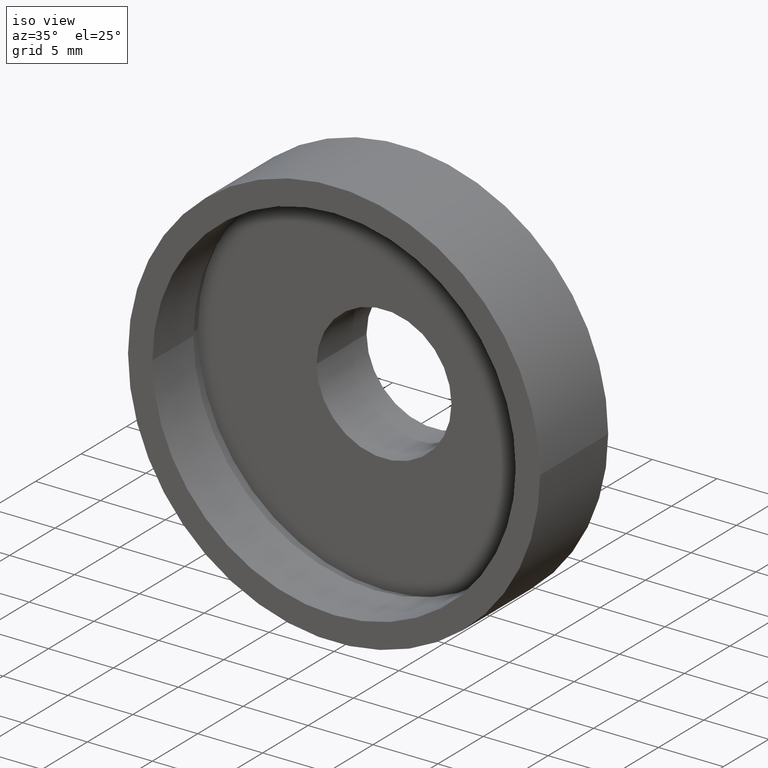
[diagram: clean part render]
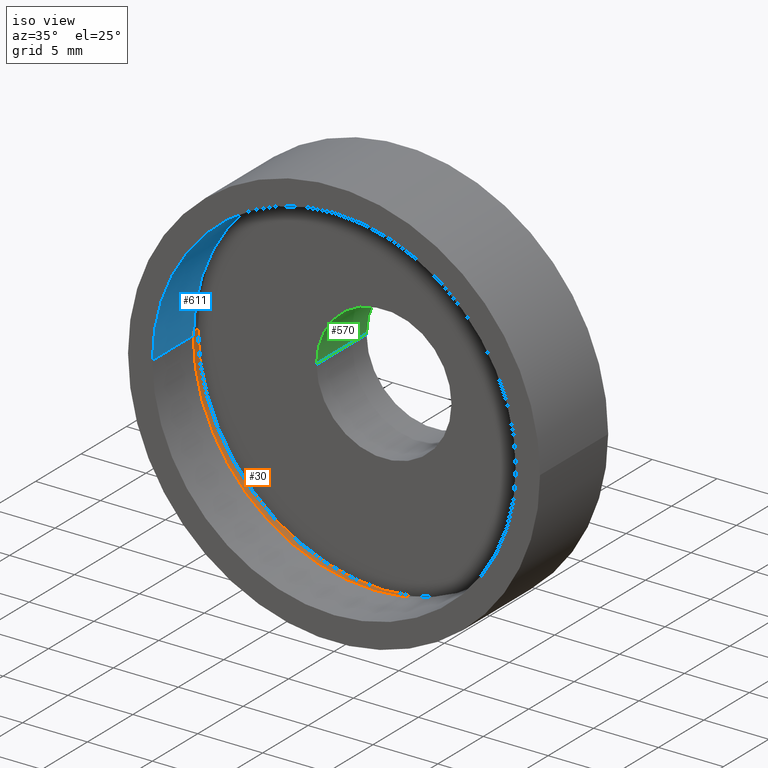
[diagram: same view with three faces highlighted in distinct colors, each labeled with its STEP entity id]
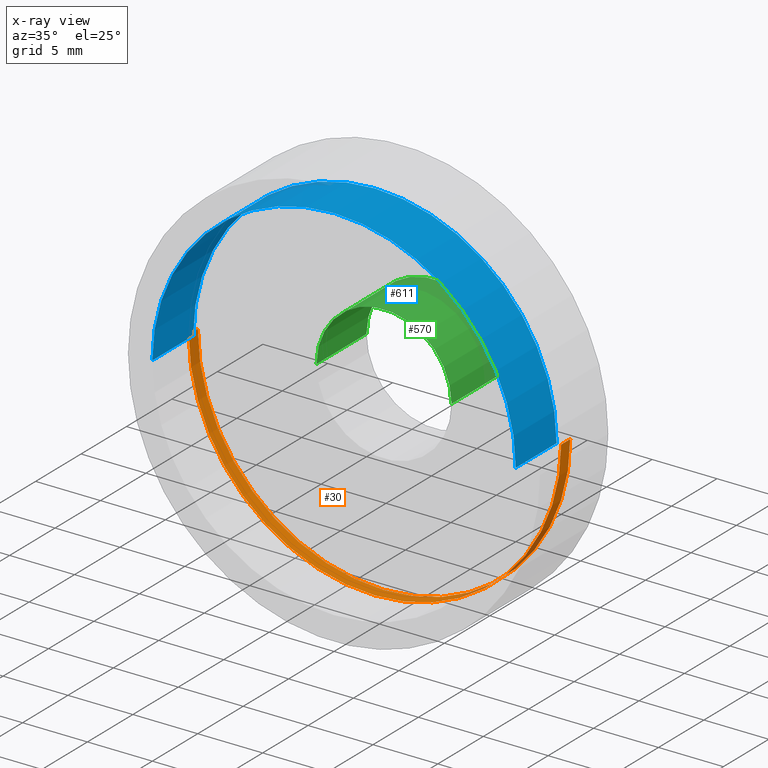
[diagram: x-ray of the same camera — body ghosted, the three highlighted faces saturated]
A machine part, iso view with three faces highlighted in distinct colors.
The next image is the same camera in x-ray (body ghosted, the three faces saturated) — at least one of them is partly hidden behind the body in this view.
Their STEP definitions:

[orange] entity #30 — the highlighted cylindrical surface (partial cylindrical patch) has radius 14.35 mm, axis along (-0, 1, -0).
#12 = CARTESIAN_POINT ( 'NONE',  ( 14.35000000000000100, 5.500000000000000000, 1.757368156776452000E-015 ) ) ;
#30 = ADVANCED_FACE ( 'NONE', ( #301 ), #120, .F. ) ;
#41 = DIRECTION ( 'NONE',  ( -1.000000000000000000, -1.208866533781747200E-016, 0.0000000000000000000 ) ) ;
#47 = CARTESIAN_POINT ( 'NONE',  ( 0.0000000000000000000, 16.88601823708207700, 0.0000000000000000000 ) ) ;
#55 = CARTESIAN_POINT ( 'NONE',  ( -14.34999999999999800, 5.499999999999996400, 0.0000000000000000000 ) ) ;
#70 = CIRCLE ( 'NONE', #162, 14.35000000000000000 ) ;
#97 = ORIENTED_EDGE ( 'NONE', *, *, #172, .F. ) ;
#120 = CYLINDRICAL_SURFACE ( 'NONE', #572, 14.35000000000000000 ) ;
#122 = VERTEX_POINT ( 'NONE', #55 ) ;
#129 = VERTEX_POINT ( 'NONE', #12 ) ;
#139 = DIRECTION ( 'NONE',  ( -1.224646799147351000E-016, 1.000000000000000000, -0.0000000000000000000 ) ) ;
#150 = ORIENTED_EDGE ( 'NONE', *, *, #602, .T. ) ;
#162 = AXIS2_PLACEMENT_3D ( 'NONE', #388, #196, #41 ) ;
#172 = EDGE_CURVE ( 'NONE', #263, #250, #393, .T. ) ;
#184 = DIRECTION ( 'NONE',  ( -1.000000000000000000, -2.417733067563494300E-016, 0.0000000000000000000 ) ) ;
#196 = DIRECTION ( 'NONE',  ( -1.224646799147351000E-016, 1.000000000000000000, -0.0000000000000000000 ) ) ;
#216 = LINE ( 'NONE', #469, #331 ) ;
#220 = ORIENTED_EDGE ( 'NONE', *, *, #432, .T. ) ;
#250 = VERTEX_POINT ( 'NONE', #359 ) ;
#263 = VERTEX_POINT ( 'NONE', #374 ) ;
#266 = DIRECTION ( 'NONE',  ( -1.000000000000000000, -1.208866533781747200E-016, 0.0000000000000000000 ) ) ;
#301 = FACE_OUTER_BOUND ( 'NONE', #566, .T. ) ;
#331 = VECTOR ( 'NONE', #567, 1000.000000000000000 ) ;
#359 = CARTESIAN_POINT ( 'NONE',  ( -14.34999999999999800, 4.499999999999997300, 0.0000000000000000000 ) ) ;
#374 = CARTESIAN_POINT ( 'NONE',  ( 14.35000000000000100, 4.500000000000000900, 1.757368156776452000E-015 ) ) ;
#385 = VECTOR ( 'NONE', #394, 1000.000000000000000 ) ;
#388 = CARTESIAN_POINT ( 'NONE',  ( 1.394385078907593000E-015, 5.499999999999998200, 0.0000000000000000000 ) ) ;
#389 = AXIS2_PLACEMENT_3D ( 'NONE', #456, #500, #266 ) ;
#393 = CIRCLE ( 'NONE', #389, 14.35000000000000000 ) ;
#394 = DIRECTION ( 'NONE',  ( -1.224646799147351000E-016, 1.000000000000000000, -0.0000000000000000000 ) ) ;
#432 = EDGE_CURVE ( 'NONE', #263, #129, #216, .T. ) ;
#438 = LINE ( 'NONE', #540, #385 ) ;
#456 = CARTESIAN_POINT ( 'NONE',  ( 1.516849758822328100E-015, 4.499999999999999100, 0.0000000000000000000 ) ) ;
#469 = CARTESIAN_POINT ( 'NONE',  ( 14.35000000000000000, 16.88601823708208000, 1.757368156776452000E-015 ) ) ;
#500 = DIRECTION ( 'NONE',  ( -1.224646799147351000E-016, 1.000000000000000000, -0.0000000000000000000 ) ) ;
#529 = ORIENTED_EDGE ( 'NONE', *, *, #545, .F. ) ;
#540 = CARTESIAN_POINT ( 'NONE',  ( -14.35000000000000000, 16.88601823708207300, 0.0000000000000000000 ) ) ;
#545 = EDGE_CURVE ( 'NONE', #250, #122, #438, .T. ) ;
#566 = EDGE_LOOP ( 'NONE', ( #97, #220, #150, #529 ) ) ;
#567 = DIRECTION ( 'NONE',  ( -1.224646799147351000E-016, 1.000000000000000000, -0.0000000000000000000 ) ) ;
#572 = AXIS2_PLACEMENT_3D ( 'NONE', #47, #139, #184 ) ;
#602 = EDGE_CURVE ( 'NONE', #129, #122, #70, .T. ) ;

[blue] entity #611 — the highlighted cylindrical surface (partial cylindrical patch) has radius 14 mm, axis along (-0, 1, -0).
#56 = VERTEX_POINT ( 'NONE', #145 ) ;
#71 = CIRCLE ( 'NONE', #225, 14.00000000000000000 ) ;
#74 = CARTESIAN_POINT ( 'NONE',  ( -13.99999999999999800, 4.499999999999997300, 0.0000000000000000000 ) ) ;
#101 = CARTESIAN_POINT ( 'NONE',  ( 14.00000000000000200, 1.714505518806291500E-015, 1.714505518806294600E-015 ) ) ;
#107 = EDGE_CURVE ( 'NONE', #440, #591, #270, .T. ) ;
#145 = CARTESIAN_POINT ( 'NONE',  ( -13.99999999999999800, -1.714505518806291500E-015, 0.0000000000000000000 ) ) ;
#159 = DIRECTION ( 'NONE',  ( -1.000000000000000000, -1.239088197126290800E-016, 0.0000000000000000000 ) ) ;
#164 = VERTEX_POINT ( 'NONE', #101 ) ;
#173 = LINE ( 'NONE', #605, #246 ) ;
#225 = AXIS2_PLACEMENT_3D ( 'NONE', #519, #384, #377 ) ;
#236 = DIRECTION ( 'NONE',  ( -1.224646799147351000E-016, 1.000000000000000000, -0.0000000000000000000 ) ) ;
#240 = EDGE_LOOP ( 'NONE', ( #496, #468, #382, #585 ) ) ;
#246 = VECTOR ( 'NONE', #425, 1000.000000000000000 ) ;
#248 = DIRECTION ( 'NONE',  ( -1.224646799147351000E-016, 1.000000000000000000, -0.0000000000000000000 ) ) ;
#261 = VECTOR ( 'NONE', #236, 1000.000000000000000 ) ;
#267 = AXIS2_PLACEMENT_3D ( 'NONE', #396, #491, #159 ) ;
#268 = FACE_OUTER_BOUND ( 'NONE', #240, .T. ) ;
#270 = CIRCLE ( 'NONE', #267, 14.00000000000000000 ) ;
#338 = CARTESIAN_POINT ( 'NONE',  ( 14.00000000000000200, 4.500000000000000900, 1.714505518806294600E-015 ) ) ;
#340 = AXIS2_PLACEMENT_3D ( 'NONE', #531, #248, #390 ) ;
#364 = CYLINDRICAL_SURFACE ( 'NONE', #340, 14.00000000000000000 ) ;
#377 = DIRECTION ( 'NONE',  ( -1.000000000000000000, -1.224646799147351000E-016, 0.0000000000000000000 ) ) ;
#382 = ORIENTED_EDGE ( 'NONE', *, *, #514, .T. ) ;
#384 = DIRECTION ( 'NONE',  ( -1.224646799147351000E-016, 1.000000000000000000, -0.0000000000000000000 ) ) ;
#390 = DIRECTION ( 'NONE',  ( -1.000000000000000000, 0.0000000000000000000, 0.0000000000000000000 ) ) ;
#396 = CARTESIAN_POINT ( 'NONE',  ( 1.516849758822328100E-015, 4.499999999999999100, 0.0000000000000000000 ) ) ;
#400 = EDGE_CURVE ( 'NONE', #164, #591, #173, .T. ) ;
#425 = DIRECTION ( 'NONE',  ( -1.224646799147351000E-016, 1.000000000000000000, -0.0000000000000000000 ) ) ;
#431 = LINE ( 'NONE', #528, #261 ) ;
#440 = VERTEX_POINT ( 'NONE', #74 ) ;
#450 = EDGE_CURVE ( 'NONE', #56, #164, #71, .T. ) ;
#468 = ORIENTED_EDGE ( 'NONE', *, *, #450, .F. ) ;
#491 = DIRECTION ( 'NONE',  ( -1.224646799147351000E-016, 1.000000000000000000, -0.0000000000000000000 ) ) ;
#496 = ORIENTED_EDGE ( 'NONE', *, *, #400, .F. ) ;
#514 = EDGE_CURVE ( 'NONE', #56, #440, #431, .T. ) ;
#519 = CARTESIAN_POINT ( 'NONE',  ( 2.067940818438636100E-015, 0.0000000000000000000, 0.0000000000000000000 ) ) ;
#528 = CARTESIAN_POINT ( 'NONE',  ( -14.00000000000000000, 16.88601823708207700, 0.0000000000000000000 ) ) ;
#531 = CARTESIAN_POINT ( 'NONE',  ( 0.0000000000000000000, 16.88601823708207700, 0.0000000000000000000 ) ) ;
#585 = ORIENTED_EDGE ( 'NONE', *, *, #107, .T. ) ;
#591 = VERTEX_POINT ( 'NONE', #338 ) ;
#605 = CARTESIAN_POINT ( 'NONE',  ( 14.00000000000000000, 16.88601823708207700, 1.714505518806294600E-015 ) ) ;
#611 = ADVANCED_FACE ( 'NONE', ( #268 ), #364, .F. ) ;

[green] entity #570 — the highlighted cylindrical surface (partial cylindrical patch) has radius 5.2 mm, axis along (-0, 1, -0).
#6 = VECTOR ( 'NONE', #243, 1000.000000000000000 ) ;
#16 = CARTESIAN_POINT ( 'NONE',  ( -5.200000000000000200, 11.00000000000000000, 0.0000000000000000000 ) ) ;
#25 = EDGE_CURVE ( 'NONE', #208, #256, #287, .T. ) ;
#28 = DIRECTION ( 'NONE',  ( -1.000000000000000000, -1.668003342285391300E-016, 0.0000000000000000000 ) ) ;
#64 = AXIS2_PLACEMENT_3D ( 'NONE', #77, #223, #28 ) ;
#75 = ORIENTED_EDGE ( 'NONE', *, *, #274, .F. ) ;
#77 = CARTESIAN_POINT ( 'NONE',  ( 1.394385078907592800E-015, 5.500000000000000000, 0.0000000000000000000 ) ) ;
#79 = VECTOR ( 'NONE', #373, 1000.000000000000000 ) ;
#84 = AXIS2_PLACEMENT_3D ( 'NONE', #363, #509, #219 ) ;
#104 = DIRECTION ( 'NONE',  ( -1.000000000000000000, 0.0000000000000000000, 0.0000000000000000000 ) ) ;
#192 = ORIENTED_EDGE ( 'NONE', *, *, #334, .F. ) ;
#208 = VERTEX_POINT ( 'NONE', #314 ) ;
#218 = VERTEX_POINT ( 'NONE', #259 ) ;
#219 = DIRECTION ( 'NONE',  ( -1.000000000000000000, 0.0000000000000000000, 0.0000000000000000000 ) ) ;
#223 = DIRECTION ( 'NONE',  ( -1.224646799147351000E-016, 1.000000000000000000, -0.0000000000000000000 ) ) ;
#230 = VERTEX_POINT ( 'NONE', #547 ) ;
#234 = EDGE_CURVE ( 'NONE', #256, #230, #495, .T. ) ;
#243 = DIRECTION ( 'NONE',  ( -1.224646799147351000E-016, 1.000000000000000000, -0.0000000000000000000 ) ) ;
#256 = VERTEX_POINT ( 'NONE', #16 ) ;
#259 = CARTESIAN_POINT ( 'NONE',  ( 5.200000000000001100, 5.500000000000000900, 6.368163355566236400E-016 ) ) ;
#264 = EDGE_LOOP ( 'NONE', ( #192, #75, #303, #565 ) ) ;
#274 = EDGE_CURVE ( 'NONE', #208, #218, #549, .T. ) ;
#287 = LINE ( 'NONE', #481, #6 ) ;
#303 = ORIENTED_EDGE ( 'NONE', *, *, #25, .T. ) ;
#307 = FACE_OUTER_BOUND ( 'NONE', #264, .T. ) ;
#314 = CARTESIAN_POINT ( 'NONE',  ( -5.199999999999998400, 5.499999999999999100, 0.0000000000000000000 ) ) ;
#334 = EDGE_CURVE ( 'NONE', #218, #230, #341, .T. ) ;
#341 = LINE ( 'NONE', #560, #79 ) ;
#363 = CARTESIAN_POINT ( 'NONE',  ( 7.208293393765498600E-016, 11.00000000000000000, 0.0000000000000000000 ) ) ;
#373 = DIRECTION ( 'NONE',  ( -1.224646799147351000E-016, 1.000000000000000000, -0.0000000000000000000 ) ) ;
#435 = CARTESIAN_POINT ( 'NONE',  ( 0.0000000000000000000, 16.88601823708207700, 0.0000000000000000000 ) ) ;
#481 = CARTESIAN_POINT ( 'NONE',  ( -5.200000000000000200, 16.88601823708207700, 0.0000000000000000000 ) ) ;
#495 = CIRCLE ( 'NONE', #84, 5.200000000000001100 ) ;
#509 = DIRECTION ( 'NONE',  ( -1.224646799147351000E-016, 1.000000000000000000, -0.0000000000000000000 ) ) ;
#547 = CARTESIAN_POINT ( 'NONE',  ( 5.200000000000001100, 11.00000000000000000, 6.368163355566236400E-016 ) ) ;
#549 = CIRCLE ( 'NONE', #64, 5.200000000000000200 ) ;
#560 = CARTESIAN_POINT ( 'NONE',  ( 5.200000000000000200, 16.88601823708207700, 6.368163355566236400E-016 ) ) ;
#565 = ORIENTED_EDGE ( 'NONE', *, *, #234, .T. ) ;
#570 = ADVANCED_FACE ( 'NONE', ( #307 ), #588, .F. ) ;
#588 = CYLINDRICAL_SURFACE ( 'NONE', #609, 5.200000000000000200 ) ;
#609 = AXIS2_PLACEMENT_3D ( 'NONE', #435, #621, #104 ) ;
#621 = DIRECTION ( 'NONE',  ( -1.224646799147351000E-016, 1.000000000000000000, -0.0000000000000000000 ) ) ;